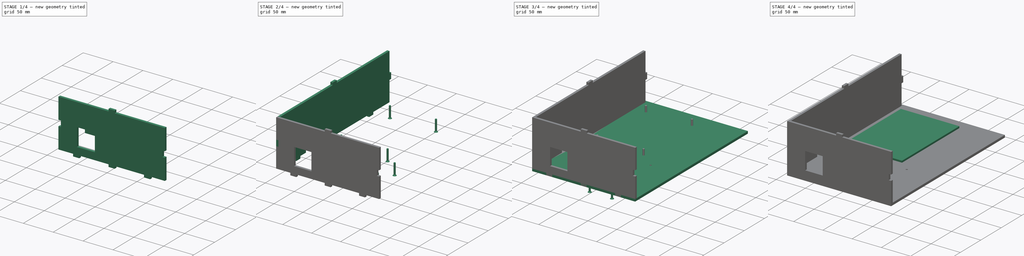
[diagram: build sequence overview — one tinted view per stage of 4, left to right]
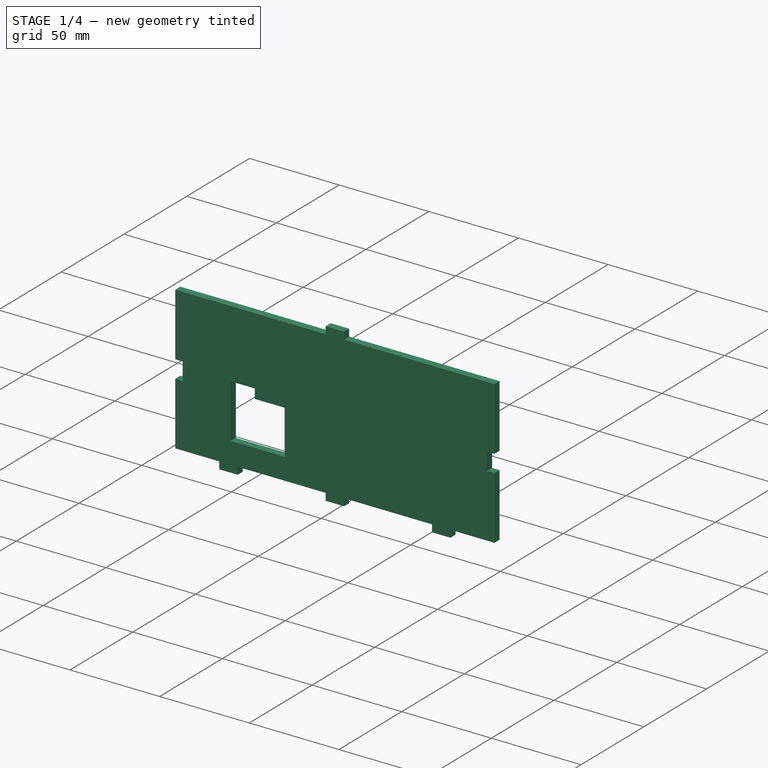
[diagram: stage 1 of 4 — iso view after this stage's code; geometry added in this stage tinted green]
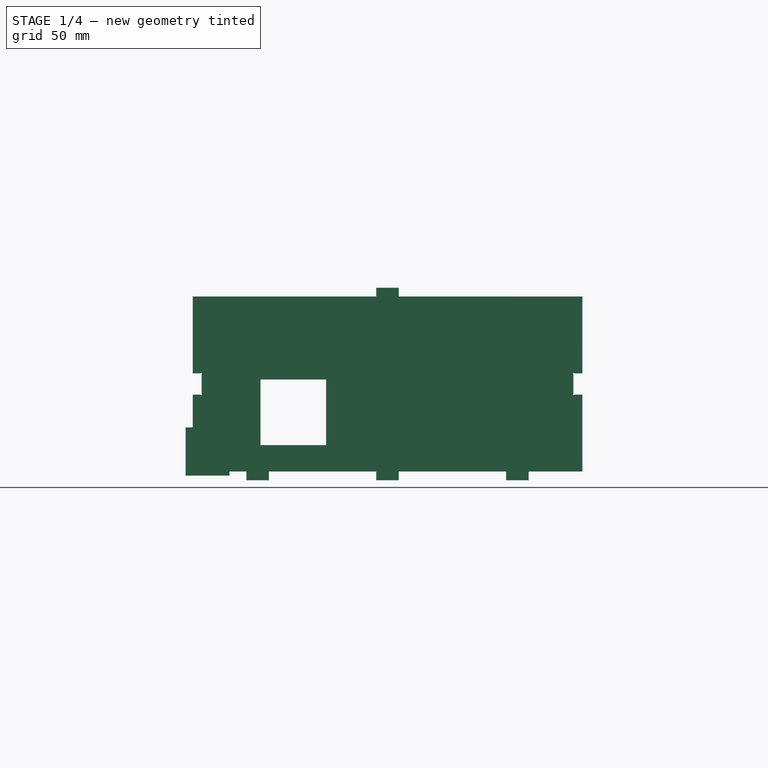
[diagram: stage 1 of 4 — front view after this stage's code; geometry added in this stage tinted green]
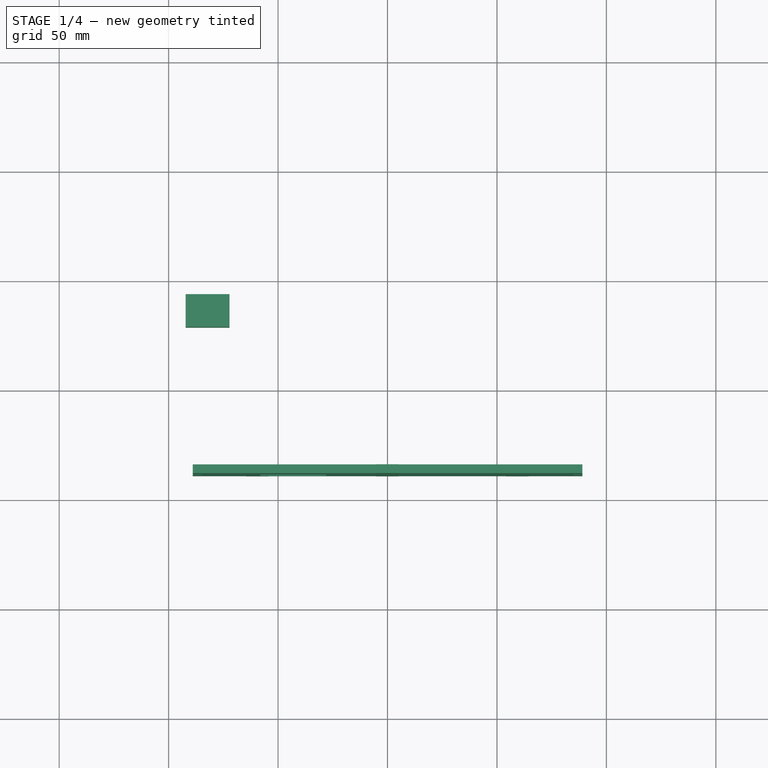
[diagram: stage 1 of 4 — top view after this stage's code; geometry added in this stage tinted green]
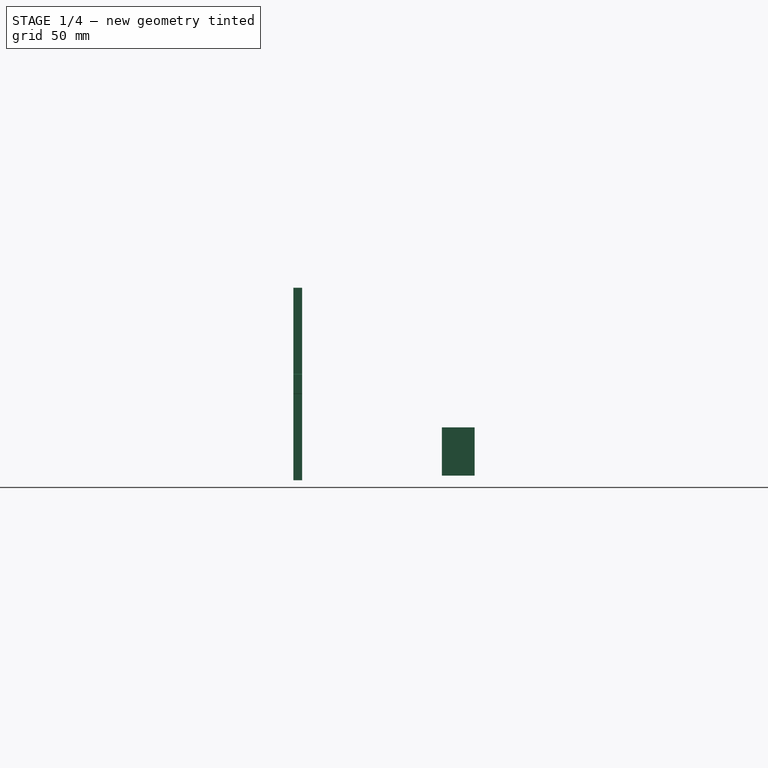
[diagram: stage 1 of 4 — right view after this stage's code; geometry added in this stage tinted green]
FCSTD DOCUMENT  (FreeCAD 0.20R29410 (Git))
Label: enclosure
License: All rights reserved
LicenseURL: http://en.wikipedia.org/wiki/All_rights_reserved
objects: Part::Feature×45, App::Link×17, App::Part×12, Sketcher::SketchObject×7, Part::Cut×6, Part::MultiFuse×4, PartDesign::CoordinateSystem×3, Part::Box×3, Part::FeaturePython×2, App::DocumentObjectGroup×1
note: 70 computed .brp shape members not serialized (recipe doc carries the construction recipe); baked Part::Feature solids carry a one-line shape summary decoded from their .brp

FEATURE [Part::FeaturePython] MultiJoin  # WARN: FeaturePython — macro-defined, semantics opaque (R4)
FEATURE [App::DocumentObjectGroup] MultiJoin001_origin_parts
  Group = -> [Cut003,face_panel,behind_panel,left_panel,right_panel,top_panel]
FEATURE [Part::Feature] bottom_panel001_tab
  shape: bbox 178 x 278 x 4 mm, 122 faces (baked)
FEATURE [Part::Feature] face_panel_tab
  shape: bbox 178 x 4 x 88 mm, 56 faces (baked)
FEATURE [Part::Feature] behind_panel_tab
  shape: bbox 178 x 4 x 88 mm, 44 faces (baked)
FEATURE [Part::Feature] left_panel_tab
  shape: bbox 4 x 278 x 88 mm, 42 faces (baked)
FEATURE [Part::Feature] right_panel_tab
  shape: bbox 4 x 278 x 88 mm, 42 faces (baked)
FEATURE [Part::Feature] top_panel_tab
  shape: bbox 178 x 278 x 4 mm, 34 faces (baked)
FEATURE [Part::FeaturePython] MultiJoin001  # WARN: FeaturePython — macro-defined, semantics opaque (R4)
  fromParts = -> [MultiJoin001_origin_parts,Cut003,face_panel,behind_panel,left_panel,right_panel,top_panel]
  generatedParts = -> [bottom_panel001_tab,face_panel_tab,behind_panel_tab,left_panel_tab,right_panel_tab,top_panel_tab]
FEATURE [Part::Box] Box001  label="power_cable_hole"
  AttacherType = Attacher::AttachEngine3D
  Height = 22
  Length = 20
  Placement = pos=(-92.22,-71.14,-41.84) rot=(0,0,1;0rad)
  Width = 15
FEATURE [Part::Box] Box002  label="Cube001"
  AttacherType = Attacher::AttachEngine3D
  Height = 30
  Length = 30
  Placement = pos=(-58.0488,-140.092,-27.9398) rot=(0,0,1;0rad)
  Width = 20
FEATURE [Part::Cut] Cut005
  Base = -> behind_panel_tab
  Tool = -> Box002
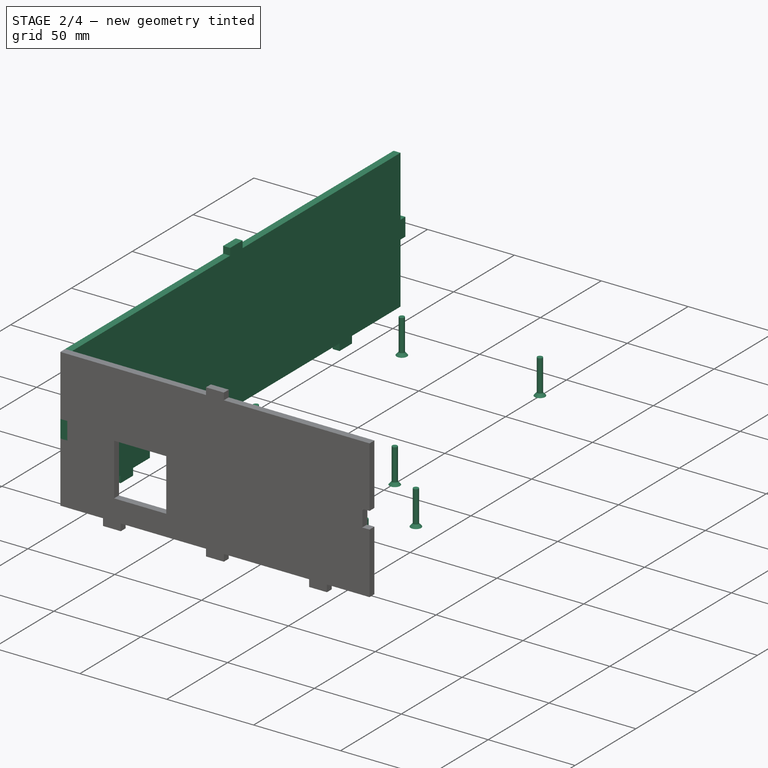
[diagram: stage 2 of 4 — iso view after this stage's code; geometry added in this stage tinted green]
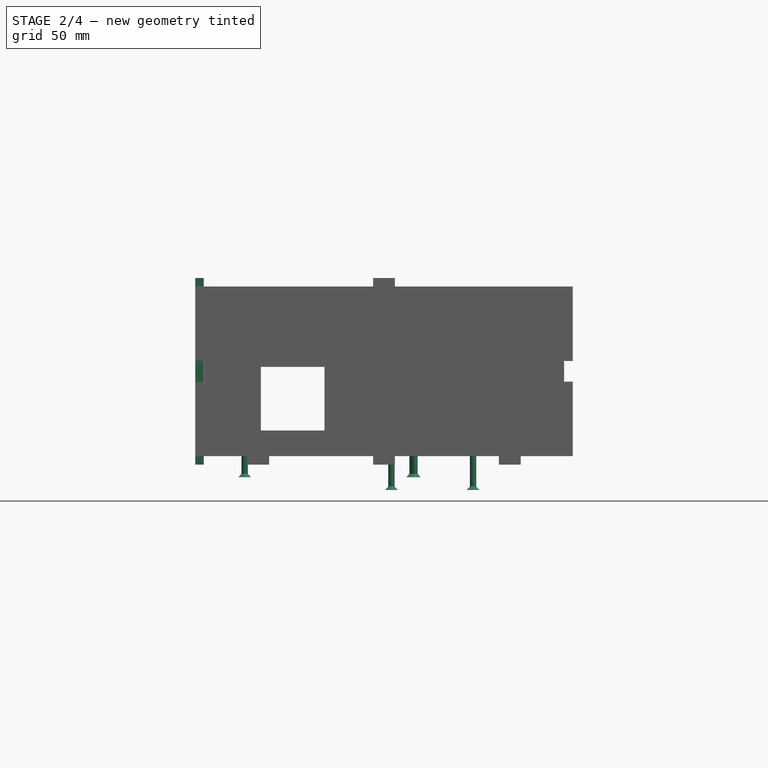
[diagram: stage 2 of 4 — front view after this stage's code; geometry added in this stage tinted green]
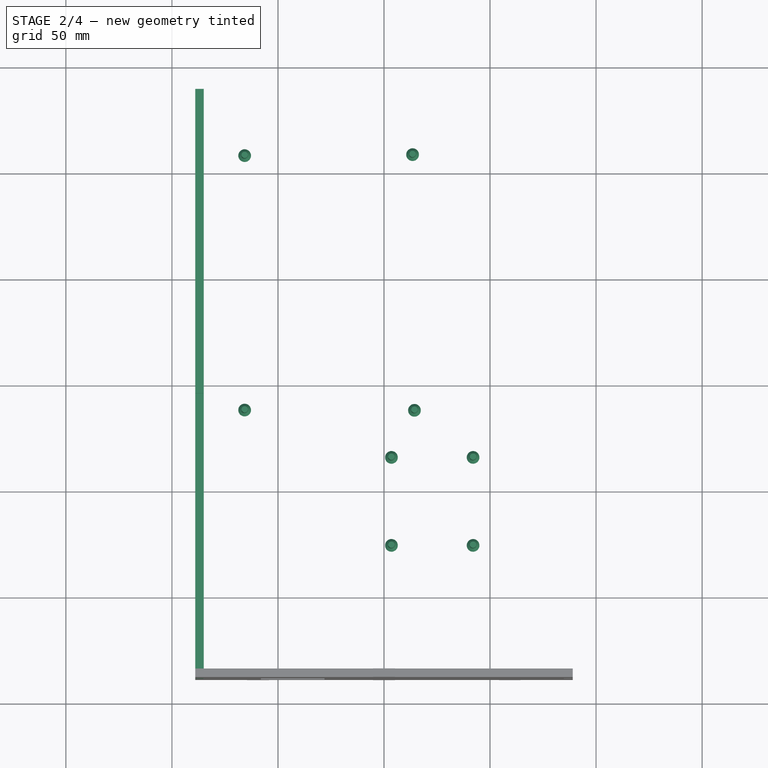
[diagram: stage 2 of 4 — top view after this stage's code; geometry added in this stage tinted green]
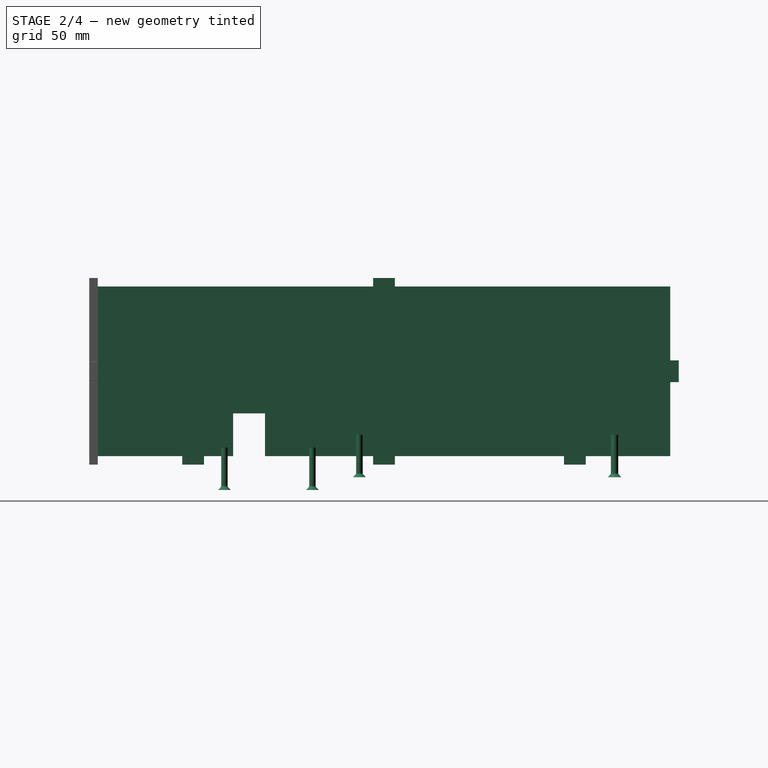
[diagram: stage 2 of 4 — right view after this stage's code; geometry added in this stage tinted green]
FEATURE [Part::Feature] BOLTS_part004  label="Hex socket countersunk head screw M3 20.004"
  Placement = pos=(3.5,-33.7418,-18) rot=(0,0,1;0rad)
  shape: bbox 6 x 6 x 20 mm, 12 faces (baked)
FEATURE [Part::Feature] BOLTS_part005  label="Hex socket countersunk head screw M3 20.005"
  Placement = pos=(42,-33.7418,-18) rot=(0,0,1;0rad)
  shape: bbox 6 x 6 x 20 mm, 12 faces (baked)
FEATURE [Part::Feature] BOLTS_part006  label="Hex socket countersunk head screw M3 20.006"
  Placement = pos=(3.5,-75.2418,-18) rot=(0,0,1;0rad)
  shape: bbox 6 x 6 x 20 mm, 12 faces (baked)
FEATURE [Part::Feature] BOLTS_part007  label="Hex socket countersunk head screw M3 20.007"
  Placement = pos=(42,-75.2418,-18) rot=(0,0,1;0rad)
  shape: bbox 6 x 6 x 20 mm, 12 faces (baked)
FEATURE [Part::Feature] BOLTS_part008  label="Hex socket countersunk head screw M3 20.008"
  Placement = pos=(3.33476,-87.2421,-18) rot=(0,0,1;0rad)
  shape: bbox 6 x 6 x 20 mm, 12 faces (baked)
FEATURE [Part::Feature] BOLTS_part009  label="Hex socket countersunk head screw M3 20.009"
  Placement = pos=(41.8348,-87.2421,-18) rot=(0,0,1;0rad)
  shape: bbox 6 x 6 x 20 mm, 12 faces (baked)
FEATURE [Part::Feature] BOLTS_part010  label="Hex socket countersunk head screw M3 20.010"
  Placement = pos=(3.33476,-128.742,-18) rot=(0,0,1;0rad)
  shape: bbox 6 x 6 x 20 mm, 12 faces (baked)
FEATURE [Part::Feature] BOLTS_part011  label="Hex socket countersunk head screw M3 20.011"
  Placement = pos=(41.8348,-128.742,-18) rot=(0,0,1;0rad)
  shape: bbox 6 x 6 x 20 mm, 12 faces (baked)
FEATURE [Part::MultiFuse] Fusion001  label="solenoid_screws003"
  Placement = pos=(0,0,-38) rot=(0,0,1;0rad)
  Shapes = -> [BOLTS_part004,BOLTS_part005,BOLTS_part006,BOLTS_part007]
FEATURE [Part::Feature] BOLTS_part012  label="Hex socket countersunk head screw M3 20.012"
  Placement = pos=(-65.71,-11.52,-20) rot=(0,0,1;0rad)
  shape: bbox 6 x 6 x 20 mm, 12 faces (baked)
FEATURE [Part::Feature] BOLTS_part013  label="Hex socket countersunk head screw M3 20.013"
  Placement = pos=(14.3605,-11.6478,-20) rot=(0,0,1;0rad)
  shape: bbox 6 x 6 x 20 mm, 12 faces (baked)
FEATURE [Part::Feature] BOLTS_part014  label="Hex socket countersunk head screw M3 20.014"
  Placement = pos=(13.47,108.94,-20) rot=(0,0,1;0rad)
  shape: bbox 6 x 6 x 20 mm, 12 faces (baked)
FEATURE [Part::Feature] BOLTS_part015  label="Hex socket countersunk head screw M3 20.015"
  Placement = pos=(-65.71,108.48,-20) rot=(0,0,1;0rad)
  shape: bbox 6 x 6 x 20 mm, 12 faces (baked)
FEATURE [Part::MultiFuse] Fusion003  label="lick_sensor_screws001"
  Placement = pos=(0,0,-30) rot=(0,0,1;0rad)
  Shapes = -> [BOLTS_part012,BOLTS_part013,BOLTS_part014,BOLTS_part015]
FEATURE [Part::Cut] Cut004
  Base = -> right_panel_tab
  Tool = -> Box001
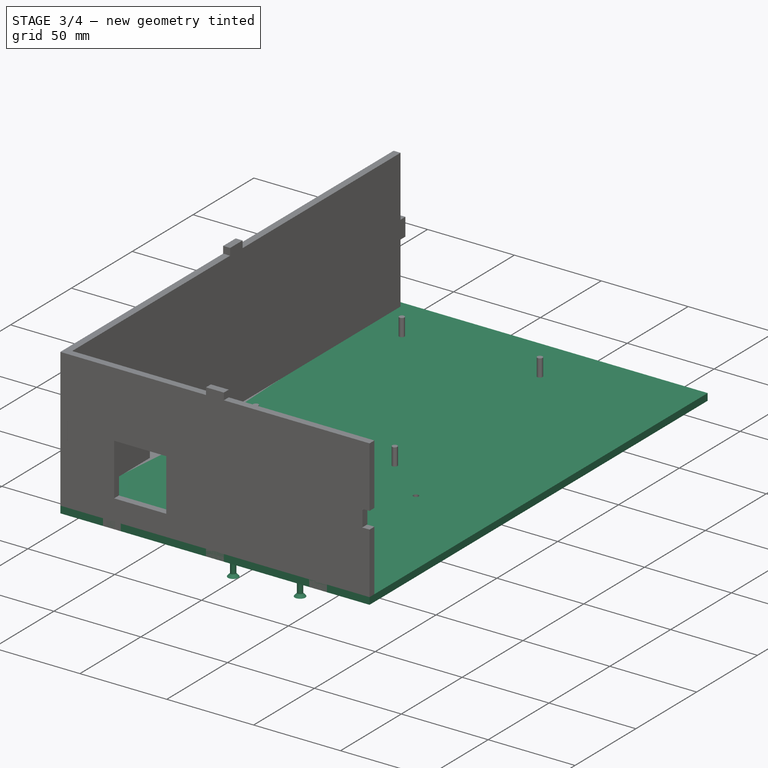
[diagram: stage 3 of 4 — iso view after this stage's code; geometry added in this stage tinted green]
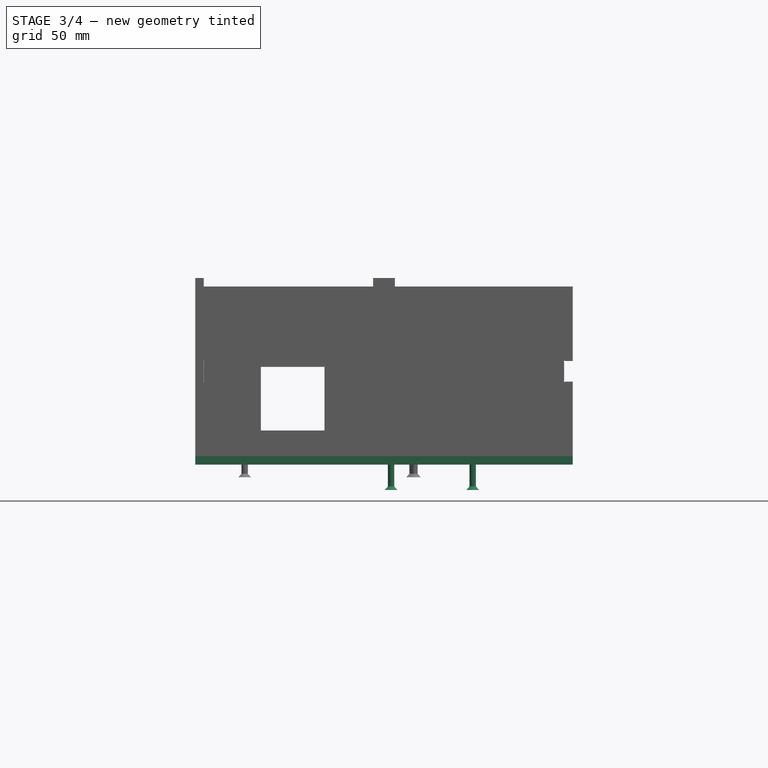
[diagram: stage 3 of 4 — front view after this stage's code; geometry added in this stage tinted green]
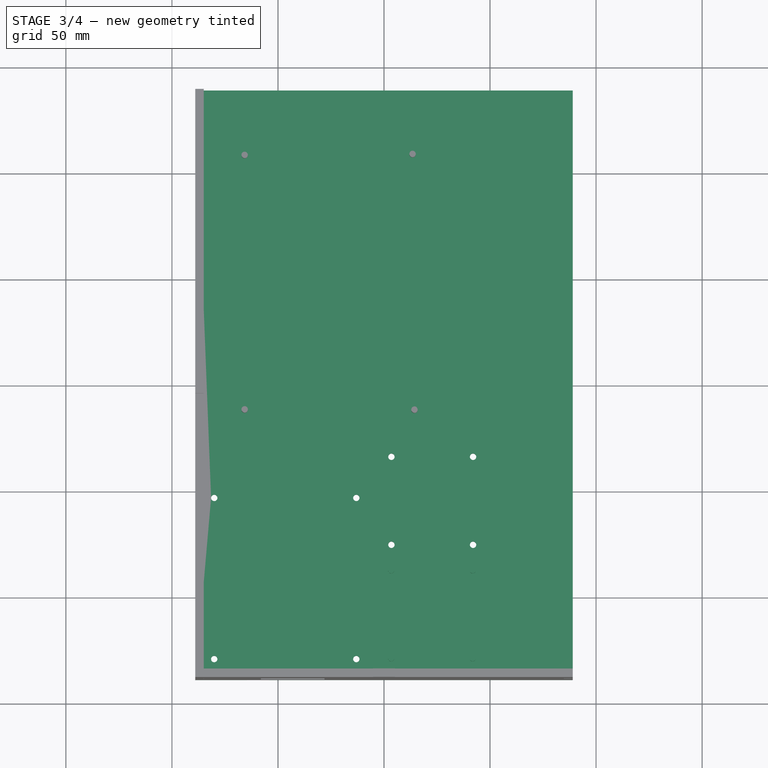
[diagram: stage 3 of 4 — top view after this stage's code; geometry added in this stage tinted green]
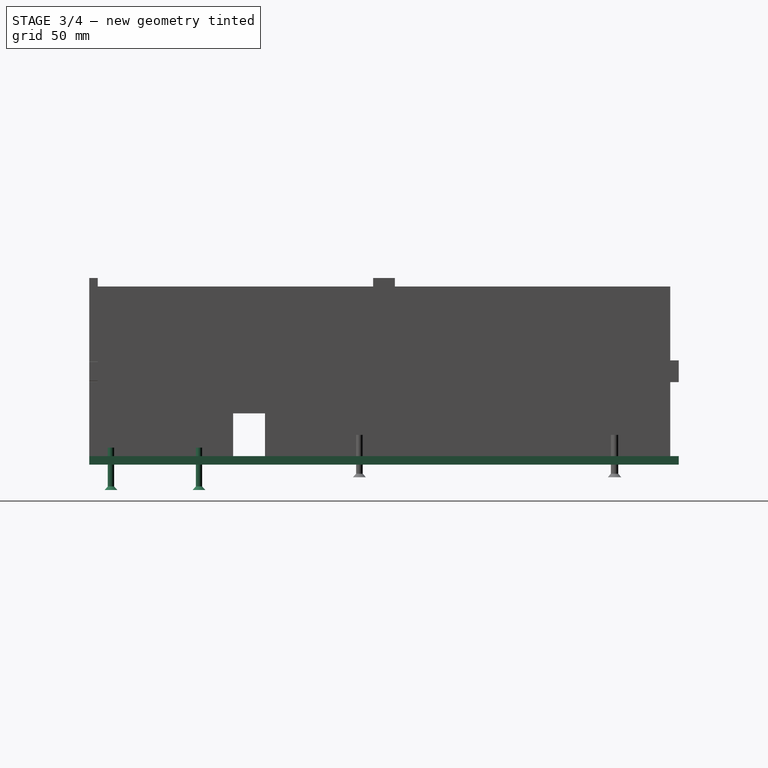
[diagram: stage 3 of 4 — right view after this stage's code; geometry added in this stage tinted green]
FEATURE [Sketcher::SketchObject] Sketch001  label="solenoid_screws1"
  FullyConstrained = true
  Placement = pos=(-0.0107633,-30.2428,1) rot=(0,0,1;0rad)
  sketch-geometry (4):
    g0: Circle CenterX=3.5 CenterY=-3.5 CenterZ=0 NormalX=0 NormalY=0 NormalZ=1 AngleXU=0 Radius=1.6
    g1: Circle CenterX=42 CenterY=-3.5 CenterZ=0 NormalX=0 NormalY=0 NormalZ=1 AngleXU=0 Radius=1.6
    g2: Circle CenterX=3.5 CenterY=-45 CenterZ=0 NormalX=0 NormalY=0 NormalZ=1 AngleXU=0 Radius=1.6
    g3: Circle CenterX=42 CenterY=-45 CenterZ=0 NormalX=0 NormalY=0 NormalZ=1 AngleXU=0 Radius=1.6
  constraints (12):
    c: Radius(g0) = 1.6
    c: DistanceX(g0) = 3.5
    c: DistanceY(g0) = -3.5
    c: Radius(g1) = 1.6
    c: DistanceX(g1) = 42
    c: DistanceY(g1) = -3.5
    c: Radius(g2) = 1.6
    c: DistanceX(g2) = 3.5
    c: DistanceY(g2) = -45
    c: Radius(g3) = 1.6
    c: DistanceX(g3) = 42
    c: DistanceY(g3) = -45
FEATURE [Sketcher::SketchObject] Sketch004  label="main_board_screws001"
  AttachmentOffset = pos=(-3,-32.8,0) rot=(0,0,1;0rad)
  FullyConstrained = true
  MapMode = 5
  Placement = pos=(-2.75946,-31.4841,1) rot=(0,0,1;0rad)
  sketch-geometry (4):
    g0: Circle CenterX=-10.2951 CenterY=-97.6595 CenterZ=0 NormalX=0 NormalY=0 NormalZ=1 AngleXU=0 Radius=1.6
    g1: Circle CenterX=-77.2851 CenterY=-97.6595 CenterZ=0 NormalX=0 NormalY=0 NormalZ=1 AngleXU=0 Radius=1.6
    g2: Circle CenterX=-77.2851 CenterY=-21.6595 CenterZ=0 NormalX=0 NormalY=0 NormalZ=1 AngleXU=0 Radius=1.6
    g3: Circle CenterX=-10.2951 CenterY=-21.6595 CenterZ=0 NormalX=0 NormalY=0 NormalZ=1 AngleXU=0 Radius=1.6
  constraints (12):
    c: Radius(g0) = 1.6
    c: Radius(g1) = 1.6
    c: Radius(g2) = 1.6
    c: Radius(g3) = 1.6
    c: DistanceX(g1,g0) = 66.99
    c: DistanceY(g0,g1) = 0
    c: DistanceY(g0,g3) = 76
    c: DistanceX(g0,g3) = 0
    c: DistanceY(g2,g3) = 0
    c: DistanceX(g2,g3) = 66.99
    c: DistanceX(g1) = -77.2851
    c: DistanceY(g1) = -97.6595
FEATURE [Part::Feature] face_panel
  shape: bbox 178 x 4 x 80 mm, 6 faces (baked)
FEATURE [Part::Feature] behind_panel
  Placement = pos=(0,-274,0) rot=(0,0,1;0rad)
  shape: bbox 178 x 4 x 80 mm, 6 faces (baked)
FEATURE [Part::Feature] left_panel
  shape: bbox 4 x 270 x 80 mm, 6 faces (baked)
FEATURE [Part::Feature] right_panel
  Placement = pos=(-174,0,0) rot=(0,0,1;0rad)
  shape: bbox 4 x 270 x 80 mm, 6 faces (baked)
FEATURE [Part::Feature] bottom_panel
  shape: bbox 178 x 278 x 4 mm, 6 faces (baked)
FEATURE [Sketcher::SketchObject] Sketch003  label="lick_sensor_screws"
  AttachmentOffset = pos=(-4,-85,-42) rot=(0,0,1;0rad)
  FullyConstrained = true
  MapMode = 2
  Placement = pos=(-4,-85,-42) rot=(0,0,1;0rad)
  Support = -> [bottom_panel]
  sketch-geometry (4):
    g0: Circle CenterX=-61.7119 CenterY=73.4769 CenterZ=0 NormalX=0 NormalY=0 NormalZ=1 AngleXU=0 Radius=1.6
    g1: Circle CenterX=18.2881 CenterY=73.4769 CenterZ=0 NormalX=0 NormalY=0 NormalZ=1 AngleXU=0 Radius=1.6
    g2: Circle CenterX=18.2881 CenterY=193.477 CenterZ=0 NormalX=0 NormalY=0 NormalZ=1 AngleXU=0 Radius=1.6
    g3: Circle CenterX=-61.7119 CenterY=193.477 CenterZ=0 NormalX=0 NormalY=0 NormalZ=1 AngleXU=0 Radius=1.6
  constraints (12):
    c: Radius(g0) = 1.6
    c: DistanceX(g0) = -61.7119
    c: DistanceY(g0) = 73.4769
    c: Radius(g1) = 1.6
    c: DistanceX(g0,g1) = 80
    c: DistanceY(g0,g1) = 0
    c: Radius(g2) = 1.6
    c: DistanceX(g2,g1) = 0
    c: DistanceY(g1,g2) = 120
    c: Radius(g3) = 1.6
    c: DistanceY(g3,g2) = 0
    c: DistanceX(g0,g3) = 0
FEATURE [Part::Feature] top_panel
  shape: bbox 178 x 278 x 4 mm, 6 faces (baked)
FEATURE [Part::Feature] BOLTS_part  label="Hex socket countersunk head screw M3 20.0"
  Placement = pos=(-80.0507,-129.131,-17.8) rot=(0,0,1;0rad)
  shape: bbox 6 x 6 x 20 mm, 12 faces (baked)
FEATURE [Part::Feature] BOLTS_part001  label="Hex socket countersunk head screw M3 20.001"
  Placement = pos=(-80.0507,-53.1308,-17.8) rot=(0,0,1;0rad)
  shape: bbox 6 x 6 x 20 mm, 12 faces (baked)
FEATURE [Part::Feature] BOLTS_part002  label="Hex socket countersunk head screw M3 20.002"
  Placement = pos=(-13.0507,-53.1308,-17.8) rot=(0,0,1;0rad)
  shape: bbox 6 x 6 x 20 mm, 12 faces (baked)
FEATURE [Part::Feature] BOLTS_part003  label="Hex socket countersunk head screw M3 20.003"
  Placement = pos=(-13.0507,-129.131,-17.8) rot=(0,0,1;0rad)
  shape: bbox 6 x 6 x 20 mm, 12 faces (baked)
FEATURE [Part::MultiFuse] Fusion  label="main_board_screws"
  Placement = pos=(0,0,-34) rot=(0,0,1;0rad)
  Shapes = -> [BOLTS_part,BOLTS_part001,BOLTS_part002,BOLTS_part003]
FEATURE [Part::Cut] Cut
  Base = -> bottom_panel
  Tool = -> Fusion
FEATURE [Part::MultiFuse] Fusion002  label="solenoid_screws004"
  Placement = pos=(0,0,-38) rot=(0,0,1;0rad)
  Shapes = -> [BOLTS_part008,BOLTS_part009,BOLTS_part010,BOLTS_part011]
FEATURE [Part::Cut] Cut001
  Base = -> Cut
  Tool = -> Fusion001
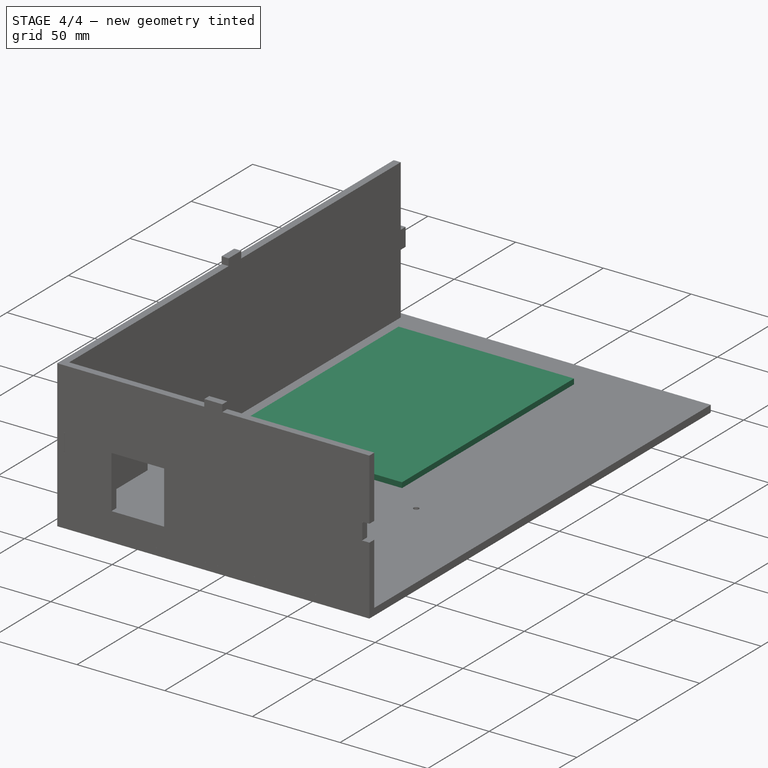
[diagram: stage 4 of 4 — iso view after this stage's code; geometry added in this stage tinted green]
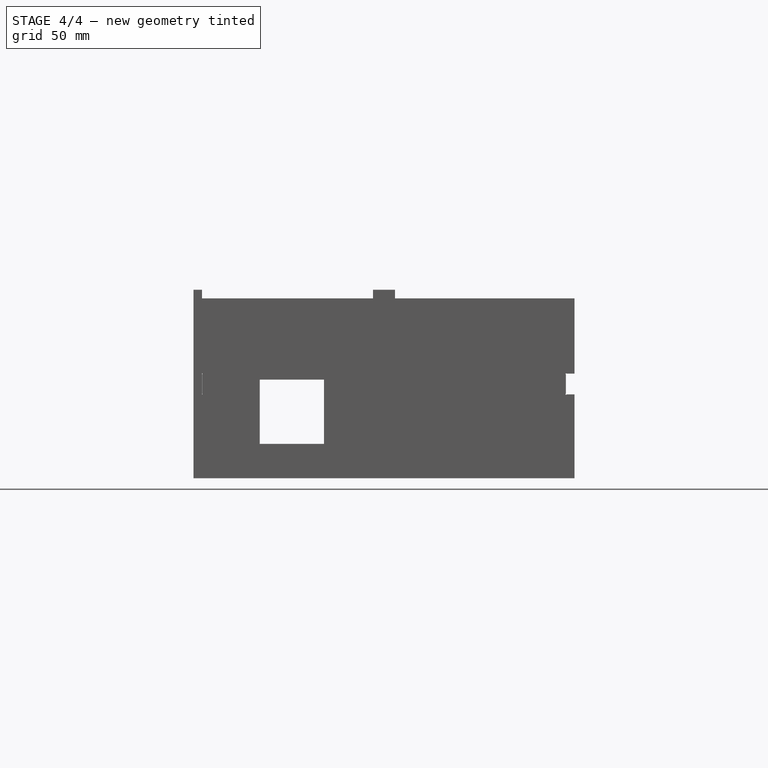
[diagram: stage 4 of 4 — front view after this stage's code; geometry added in this stage tinted green]
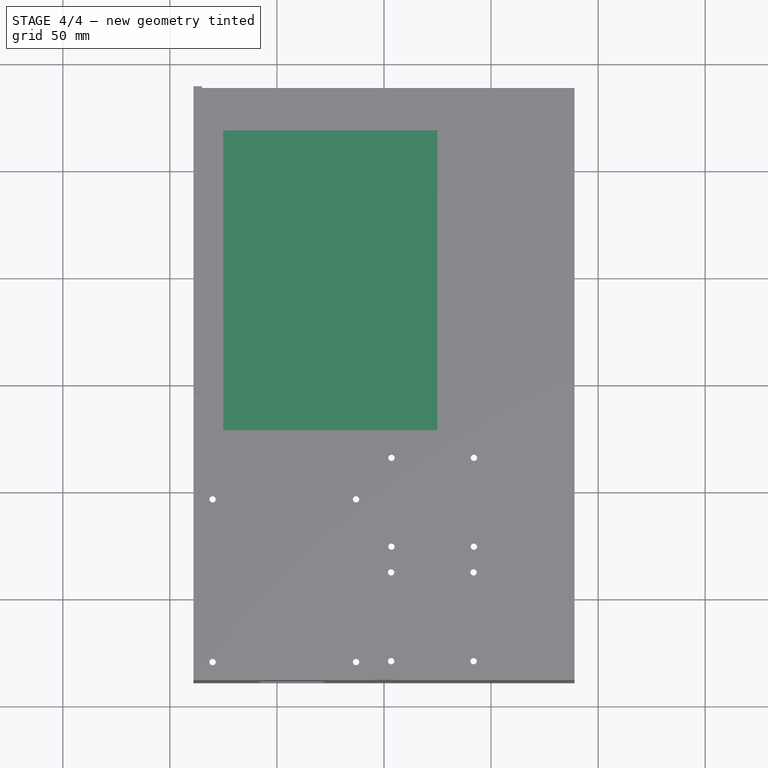
[diagram: stage 4 of 4 — top view after this stage's code; geometry added in this stage tinted green]
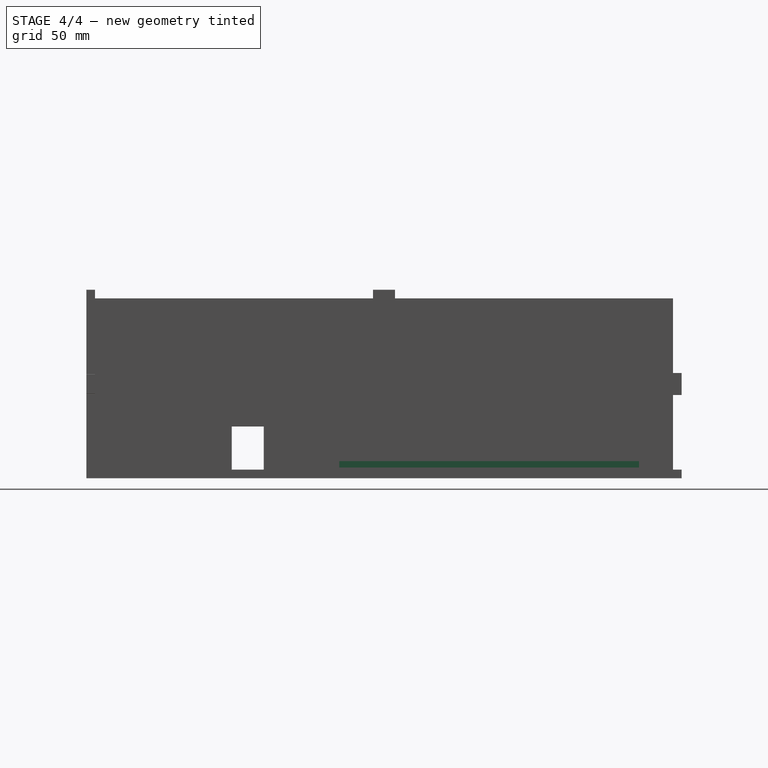
[diagram: stage 4 of 4 — right view after this stage's code; geometry added in this stage tinted green]
FEATURE [PartDesign::CoordinateSystem] Local_CS_e13b
  AttacherType = Attacher::AttachEngine3D
  MapMode = 2
  Support = -> [X_Axis001]
FEATURE [Part::Feature] Pcb_e13b
  shape: bbox 45.5 x 48.5 x 1.6 mm, 40 faces (baked)
FEATURE [Sketcher::SketchObject] PCB_Sketch_e13b
  FullyConstrained = false
  sketch-geometry (4):
    g0: LineSegment StartX=157.5 StartY=-80.5 StartZ=0 EndX=157.5 EndY=-129 EndZ=0
    g1: LineSegment StartX=112 StartY=-129 StartZ=0 EndX=112 EndY=-80.5 EndZ=0
    g2: LineSegment StartX=157.5 StartY=-80.5 StartZ=0 EndX=112 EndY=-80.5 EndZ=0
    g3: LineSegment StartX=157.5 StartY=-129 StartZ=0 EndX=112 EndY=-129 EndZ=0
  constraints (4):
    c: Coincident(g1,g3)
    c: Coincident(g1,g2)
    c: Coincident(g0,g3)
    c: Coincident(g0,g2)
FEATURE [App::Part] Board_Geoms_e13b
  Group = -> [Pcb_e13b,PCB_Sketch_e13b]
  Origin = -> Origin
FEATURE [Part::Feature] Shape  label="J1_JST_B4B_XH_A_000060ce2996"
  Placement = pos=(116.5,-98.873,0) rot=(0,0,1;1.5708rad)
  shape: bbox 5.75 x 12.4 x 10.4 mm, 141 faces (baked)
FEATURE [Part::Feature] Shape001  label="R1_R_Box_L130mm_W40mm_P900mm_000060ce2a81"
  Placement = pos=(130.302,-115.824,0) rot=(0,0,1;1.5708rad)
  shape: bbox 4 x 13 x 11 mm, 10 faces (baked)
FEATURE [Part::Feature] Shape002  label="D1_D_DO-201AD_P15.24mm_Horizontal_0000622bbbd0"
  Placement = pos=(143.637,-111.633,0) rot=(0,0,1;1.5708rad)
  shape: bbox 5.22 x 16.86 x 8.21 mm, 15 faces (baked)
FEATURE [App::Link] D1_D_DO_201AD_P15_24mm_Horizontal_0000622bbbd0_ln_  label="D2_D_DO-201AD_P15.24mm_Horizontal_0000622bbbef"
  LinkPlacement = pos=(136.779,-111.633,0) rot=(0,0,1;1.5708rad)
  LinkedObject = -> Shape002
  Placement = pos=(136.779,-111.633,0) rot=(0,0,1;1.5708rad)
FEATURE [Part::Feature] Shape003  label="J4_JST_B2B_XH_A_0000622bbc6c"
  Placement = pos=(151.113,-115.423,0) rot=(0,0,1;1.5708rad)
  shape: bbox 5.75 x 7.4 x 10.4 mm, 89 faces (baked)
FEATURE [Part::Feature] Shape004  label="Q1_TO-220-3_Vertical_0000622bbc86"
  Placement = pos=(138.494,-83.8835,0) rot=(0,0,1;0rad)
  shape: bbox 10.25 x 4.455 x 28.53 mm, 48 faces (baked)
FEATURE [App::Link] Q1_TO_220_3_Vertical_0000622bbc86_ln_  label="Q2_TO-220-3_Vertical_0000622bbca0"
  LinkPlacement = pos=(124.587,-83.947,0) rot=(0,0,1;0rad)
  LinkedObject = -> Shape004
  Placement = pos=(124.587,-83.947,0) rot=(0,0,1;0rad)
FEATURE [App::Link] R1_R_Box_L130mm_W40mm_P900mm_000060ce2a81_ln_  label="R2_R_Box_L130mm_W40mm_P900mm_0000622bbcb3"
  LinkPlacement = pos=(130.175,-101.02,0) rot=(0,0,1;1.5708rad)
  LinkedObject = -> Shape001
  Placement = pos=(130.175,-101.02,0) rot=(0,0,1;1.5708rad)
FEATURE [App::Link] J4_JST_B2B_XH_A_0000622bbc6c_ln_  label="J2_JST_B2B_XH_A_000062744829"
  LinkPlacement = pos=(116.522,-108.184,0) rot=(0,0,1;1.5708rad)
  LinkedObject = -> Shape003
  Placement = pos=(116.522,-108.184,0) rot=(0,0,1;1.5708rad)
FEATURE [App::Link] J4_JST_B2B_XH_A_0000622bbc6c_ln_001  label="J3_JST_B2B_XH_A_000062744851"
  LinkPlacement = pos=(150.859,-96.5,0) rot=(0,0,1;1.5708rad)
  LinkedObject = -> Shape003
  Placement = pos=(150.859,-96.5,0) rot=(0,0,1;1.5708rad)
FEATURE [App::Link] R1_R_Box_L130mm_W40mm_P900mm_000060ce2a81_ln_001  label="R4_R_Box_L130mm_W40mm_P900mm_a9ebd07146ab"
  LinkPlacement = pos=(124.333,-106.824,0) rot=(0,0,-1;1.5708rad)
  LinkedObject = -> Shape001
  Placement = pos=(124.333,-106.824,0) rot=(0,0,-1;1.5708rad)
FEATURE [App::Link] R1_R_Box_L130mm_W40mm_P900mm_000060ce2a81_ln_002  label="R3_R_Box_L130mm_W40mm_P900mm_9d5ed4e60a8b"
  LinkPlacement = pos=(124.206,-92.075,0) rot=(0,0,-1;1.5708rad)
  LinkedObject = -> Shape001
  Placement = pos=(124.206,-92.075,0) rot=(0,0,-1;1.5708rad)
FEATURE [App::Link] J4_JST_B2B_XH_A_0000622bbc6c_ln_002  label="J5_JST_B2B_XH_A_272d5671b5f0"
  LinkPlacement = pos=(116.459,-117.729,0) rot=(0,0,1;1.5708rad)
  LinkedObject = -> Shape003
  Placement = pos=(116.459,-117.729,0) rot=(0,0,1;1.5708rad)
FEATURE [App::Part] Top_e13b
  Group = -> [Shape,Shape001,Shape002,D1_D_DO_201AD_P15_24mm_Horizontal_0000622bbbd0_ln_,Shape003,Shape004,Q1_TO_220_3_Vertical_0000622bbc86_ln_,R1_R_Box_L130mm_W40mm_P900mm_000060ce2a81_ln_,J4_JST_B2B_XH_A_0000622bbc6c_ln_,J4_JST_B2B_XH_A_0000622bbc6c_ln_001,R1_R_Box_L130mm_W40mm_P900mm_000060ce2a81_ln_001,R1_R_Box_L130mm_W40mm_P900mm_000060ce2a81_ln_002,J4_JST_B2B_XH_A_0000622bbc6c_ln_002]
  Origin = -> Origin003
FEATURE [App::Part] Step_Models_e13b
  Group = -> [Top_e13b]
  Origin = -> Origin002
FEATURE [App::Part] Board_e13b  label="solenoid_driver"
  Group = -> [Local_CS_e13b,Board_Geoms_e13b,Step_Models_e13b]
  Origin = -> Origin001
  Placement = pos=(-112.165,-3.24213,2) rot=(0,0,1;0rad)
FEATURE [Sketcher::SketchObject] Sketch  label="solenoid_screws2"
  FullyConstrained = true
  Placement = pos=(-0.166109,-83.7391,41) rot=(0,0,1;0rad)
  sketch-geometry (4):
    g0: Circle CenterX=3.5 CenterY=-3.5 CenterZ=0 NormalX=0 NormalY=0 NormalZ=1 AngleXU=0 Radius=1.6
    g1: Circle CenterX=42 CenterY=-3.5 CenterZ=0 NormalX=0 NormalY=0 NormalZ=1 AngleXU=0 Radius=1.6
    g2: Circle CenterX=3.5 CenterY=-45 CenterZ=0 NormalX=0 NormalY=0 NormalZ=1 AngleXU=0 Radius=1.6
    g3: Circle CenterX=42 CenterY=-45 CenterZ=0 NormalX=0 NormalY=0 NormalZ=1 AngleXU=0 Radius=1.6
  constraints (12):
    c: Radius(g0) = 1.6
    c: DistanceX(g0) = 3.5
    c: DistanceY(g0) = -3.5
    c: Radius(g1) = 1.6
    c: DistanceX(g1) = 42
    c: DistanceY(g1) = -3.5
    c: Radius(g2) = 1.6
    c: DistanceX(g2) = 3.5
    c: DistanceY(g2) = -45
    c: Radius(g3) = 1.6
    c: DistanceX(g3) = 42
    c: DistanceY(g3) = -45
FEATURE [App::Link] R1_R_Box_L130mm_W40mm_P900mm_000060ce2a81_ln_003  label="R4_R_Box_L130mm_W40mm_P900mm_a9ebd07146ab001"
  LinkPlacement = pos=(124.333,-106.824,0) rot=(0,0,-1;1.5708rad)
  LinkedObject = -> Shape005
  Placement = pos=(124.333,-106.824,0) rot=(0,0,-1;1.5708rad)
FEATURE [App::Link] R1_R_Box_L130mm_W40mm_P900mm_000060ce2a81_ln_004  label="R2_R_Box_L130mm_W40mm_P900mm_0000622bbcb004"
  LinkPlacement = pos=(130.175,-101.02,0) rot=(0,0,1;1.5708rad)
  LinkedObject = -> Shape005
  Placement = pos=(130.175,-101.02,0) rot=(0,0,1;1.5708rad)
FEATURE [App::Link] J4_JST_B2B_XH_A_0000622bbc6c_ln_003  label="J3_JST_B2B_XH_A_000062744852"
  LinkPlacement = pos=(150.859,-96.5,0) rot=(0,0,1;1.5708rad)
  LinkedObject = -> Shape009
  Placement = pos=(150.859,-96.5,0) rot=(0,0,1;1.5708rad)
FEATURE [App::Link] Q1_TO_220_3_Vertical_0000622bbc86_ln_001  label="Q2_TO-220-3_Vertical_0000622bbca001"
  LinkPlacement = pos=(124.587,-83.947,0) rot=(0,0,1;0rad)
  LinkedObject = -> Shape008
  Placement = pos=(124.587,-83.947,0) rot=(0,0,1;0rad)
FEATURE [App::Link] D1_D_DO_201AD_P15_24mm_Horizontal_0000622bbbd0_ln_001  label="D2_D_DO-201AD_P15.24mm_Horizontal_0000622bbbef001"
  LinkPlacement = pos=(136.779,-111.633,0) rot=(0,0,1;1.5708rad)
  LinkedObject = -> Shape007
  Placement = pos=(136.779,-111.633,0) rot=(0,0,1;1.5708rad)
FEATURE [App::Link] J4_JST_B2B_XH_A_0000622bbc6c_ln_004  label="J2_JST_B2B_XH_A_000062744830"
  LinkPlacement = pos=(116.522,-108.184,0) rot=(0,0,1;1.5708rad)
  LinkedObject = -> Shape009
  Placement = pos=(116.522,-108.184,0) rot=(0,0,1;1.5708rad)
FEATURE [App::Link] J4_JST_B2B_XH_A_0000622bbc6c_ln_005  label="J5_JST_B2B_XH_A_272d5671b5f001"
  LinkPlacement = pos=(116.459,-117.729,0) rot=(0,0,1;1.5708rad)
  LinkedObject = -> Shape009
  Placement = pos=(116.459,-117.729,0) rot=(0,0,1;1.5708rad)
FEATURE [App::Link] R1_R_Box_L130mm_W40mm_P900mm_000060ce2a81_ln_005  label="R3_R_Box_L130mm_W40mm_P900mm_9d5ed4e60a8b001"
  LinkPlacement = pos=(124.206,-92.075,0) rot=(0,0,-1;1.5708rad)
  LinkedObject = -> Shape005
  Placement = pos=(124.206,-92.075,0) rot=(0,0,-1;1.5708rad)
FEATURE [Sketcher::SketchObject] PCB_Sketch_e13b001
  FullyConstrained = false
  sketch-geometry (4):
    g0: LineSegment StartX=157.5 StartY=-80.5 StartZ=0 EndX=157.5 EndY=-129 EndZ=0
    g1: LineSegment StartX=112 StartY=-129 StartZ=0 EndX=112 EndY=-80.5 EndZ=0
    g2: LineSegment StartX=157.5 StartY=-80.5 StartZ=0 EndX=112 EndY=-80.5 EndZ=0
    g3: LineSegment StartX=157.5 StartY=-129 StartZ=0 EndX=112 EndY=-129 EndZ=0
  constraints (4):
    c: Coincident(g1,g3)
    c: Coincident(g1,g2)
    c: Coincident(g0,g3)
    c: Coincident(g0,g2)
FEATURE [PartDesign::CoordinateSystem] Local_CS_e13b001
  AttacherType = Attacher::AttachEngine3D
  MapMode = 2
  Support = -> [X_Axis006]
FEATURE [Part::Feature] Pcb_e13b001
  shape: bbox 45.5 x 48.5 x 1.6 mm, 40 faces (baked)
FEATURE [App::Part] Board_Geoms_e13b001  label="Board_Geoms_e13b002"
  Group = -> [Pcb_e13b001,PCB_Sketch_e13b001]
  Origin = -> Origin004
FEATURE [Part::Feature] Shape005  label="R1_R_Box_L130mm_W40mm_P900mm_000060ce2a082"
  Placement = pos=(130.302,-115.824,0) rot=(0,0,1;1.5708rad)
  shape: bbox 4 x 13 x 11 mm, 10 faces (baked)
FEATURE [Part::Feature] Shape006  label="J1_JST_B4B_XH_A_000060ce2997"
  Placement = pos=(116.5,-98.873,0) rot=(0,0,1;1.5708rad)
  shape: bbox 5.75 x 12.4 x 10.4 mm, 141 faces (baked)
FEATURE [Part::Feature] Shape007  label="D1_D_DO-201AD_P15.24mm_Horizontal_0000622bbbd001"
  Placement = pos=(143.637,-111.633,0) rot=(0,0,1;1.5708rad)
  shape: bbox 5.22 x 16.86 x 8.21 mm, 15 faces (baked)
FEATURE [Part::Feature] Shape008  label="Q1_TO-220-3_Vertical_0000622bbc087"
  Placement = pos=(138.494,-83.8835,0) rot=(0,0,1;0rad)
  shape: bbox 10.25 x 4.455 x 28.53 mm, 48 faces (baked)
FEATURE [Part::Feature] Shape009  label="J4_JST_B2B_XH_A_0000622bbc6c001"
  Placement = pos=(151.113,-115.423,0) rot=(0,0,1;1.5708rad)
  shape: bbox 5.75 x 7.4 x 10.4 mm, 89 faces (baked)
FEATURE [App::Part] Top_e13b001  label="Top_e13b002"
  Group = -> [Shape006,Shape005,Shape007,D1_D_DO_201AD_P15_24mm_Horizontal_0000622bbbd0_ln_001,Shape009,Shape008,Q1_TO_220_3_Vertical_0000622bbc86_ln_001,R1_R_Box_L130mm_W40mm_P900mm_000060ce2a81_ln_004,J4_JST_B2B_XH_A_0000622bbc6c_ln_004,J4_JST_B2B_XH_A_0000622bbc6c_ln_003,R1_R_Box_L130mm_W40mm_P900mm_000060ce2a81_ln_003,R1_R_Box_L130mm_W40mm_P900mm_000060ce2a81_ln_005,J4_JST_B2B_XH_A_0000622bbc6c_ln_005]
  Origin = -> Origin005
FEATURE [App::Part] Step_Models_e13b001  label="Step_Models_e13b002"
  Group = -> [Top_e13b001]
  Origin = -> Origin007
FEATURE [App::Part] Board_e13b001  label="solenoid_driver001"
  Group = -> [Local_CS_e13b001,Board_Geoms_e13b001,Step_Models_e13b001]
  Origin = -> Origin006
  Placement = pos=(-112,50.2582,2) rot=(0,0,1;0rad)
FEATURE [PartDesign::CoordinateSystem] Local_CS_b27c001
  AttacherType = Attacher::AttachEngine3D
  MapMode = 2
  Support = -> [X_Axis008]
FEATURE [Part::Feature] Pcb_b27c001
  shape: bbox 76 x 85 x 1.6 mm, 143 faces (baked)
FEATURE [Sketcher::SketchObject] PCB_Sketch_b27c001
  FullyConstrained = false
  sketch-geometry (4):
    g0: LineSegment StartX=135 StartY=-60 StartZ=0 EndX=135 EndY=-145 EndZ=0
    g1: LineSegment StartX=211 StartY=-145 StartZ=0 EndX=211 EndY=-60 EndZ=0
    g2: LineSegment StartX=211 StartY=-145 StartZ=0 EndX=135 EndY=-145 EndZ=0
    g3: LineSegment StartX=135 StartY=-60 StartZ=0 EndX=211 EndY=-60 EndZ=0
  constraints (4):
    c: Coincident(g0,g2)
    c: Coincident(g0,g3)
    c: Coincident(g1,g2)
    c: Coincident(g1,g3)
FEATURE [App::Part] Board_Geoms_b27c001  label="Board_Geoms_b27c002"
  Group = -> [Pcb_b27c001,PCB_Sketch_b27c001]
  Origin = -> Origin009
FEATURE [Part::Feature] Shape010  label="R1_R_Box_L130mm_W40mm_P900mm_61EC0F078"
  Placement = pos=(206.5,-112.5,0) rot=(0,0,-1;1.5708rad)
  shape: bbox 4 x 13 x 11 mm, 10 faces (baked)
FEATURE [Part::Feature] Shape011  label="D2_LED_D3.0mm_61EC0A3C001"
  Placement = pos=(206.5,-105,0) rot=(0,0,-1;1.5708rad)
  shape: bbox 3.8 x 3.4 x 10.8 mm, 16 faces (baked)
FEATURE [Part::Feature] Shape012  label="P16_JST_B2B_XH_A_5FD24A1A001"
  Placement = pos=(191,-141,0) rot=(0,0,1;3.14159rad)
  shape: bbox 7.4 x 5.75 x 10.4 mm, 89 faces (baked)
FEATURE [App::Link] P16_JST_B2B_XH_A_5FD24A1A_ln_001  label="P15_JST_B2B_XH_A_5FD249F002"
  LinkPlacement = pos=(200,-141,0) rot=(0,0,1;3.14159rad)
  LinkedObject = -> Shape012
  Placement = pos=(200,-141,0) rot=(0,0,1;3.14159rad)
FEATURE [Part::Feature] Shape013  label="U1_TO_220_5_Pentawatt_Multiwatt_5_Vertical_StaggeredType1_61E2F561"
  Placement = pos=(200.5,-93.5,0) rot=(0,0,-1;1.5708rad)
  shape: bbox 8.75 x 10.4 x 24.4 mm, 89 faces (baked)
FEATURE [App::Part] Top_b27c001  label="Top_b27c002"
  Group = -> [Shape010,Shape011,Shape012,P16_JST_B2B_XH_A_5FD24A1A_ln_001,Shape013]
  Origin = -> Origin011
FEATURE [App::Part] Step_Models_b27c001  label="Step_Models_b27c003"
  Group = -> [Top_b27c001]
  Origin = -> Origin010
FEATURE [App::Part] Board_b27c001  label="beehive001"
  Group = -> [Local_CS_b27c001,Board_Geoms_b27c001,Step_Models_b27c001]
  Origin = -> Origin008
  Placement = pos=(126.45,-193.63,-32.8) rot=(0,0,1;3.14159rad)
FEATURE [Part::Box] Box  label="Cube"
  AttacherType = Attacher::AttachEngine3D
  Height = 3
  Length = 100
  Placement = pos=(-75.09,-20.89,-39) rot=(0,0,1;0rad)
  Width = 140
FEATURE [Part::Cut] Cut002
  Base = -> Cut001
  Tool = -> Fusion002
FEATURE [Part::Cut] Cut003  label="bottom_panel001"
  Base = -> Cut002
  Tool = -> Fusion003
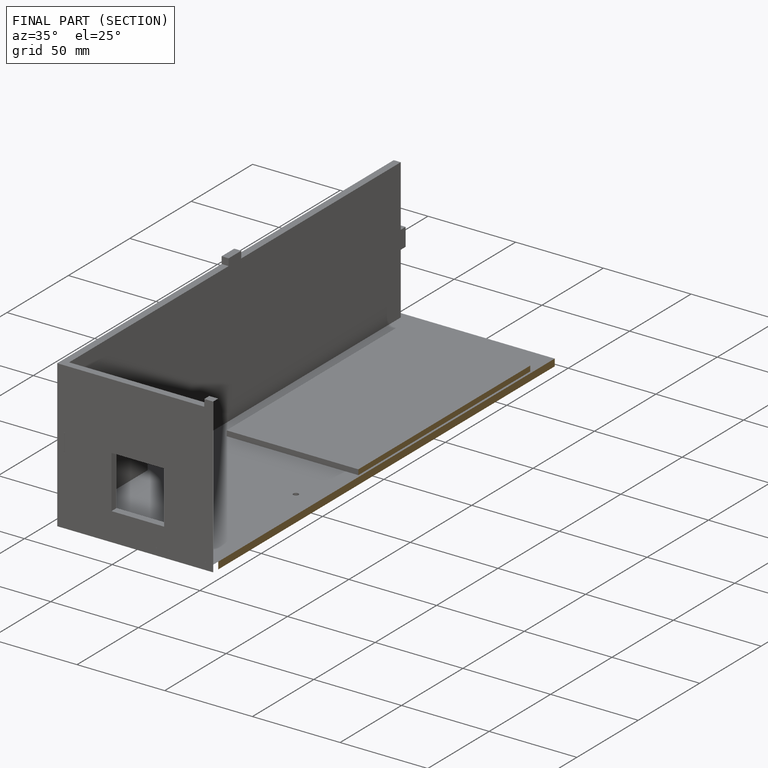
[diagram: finished part — half-section view (interior)]
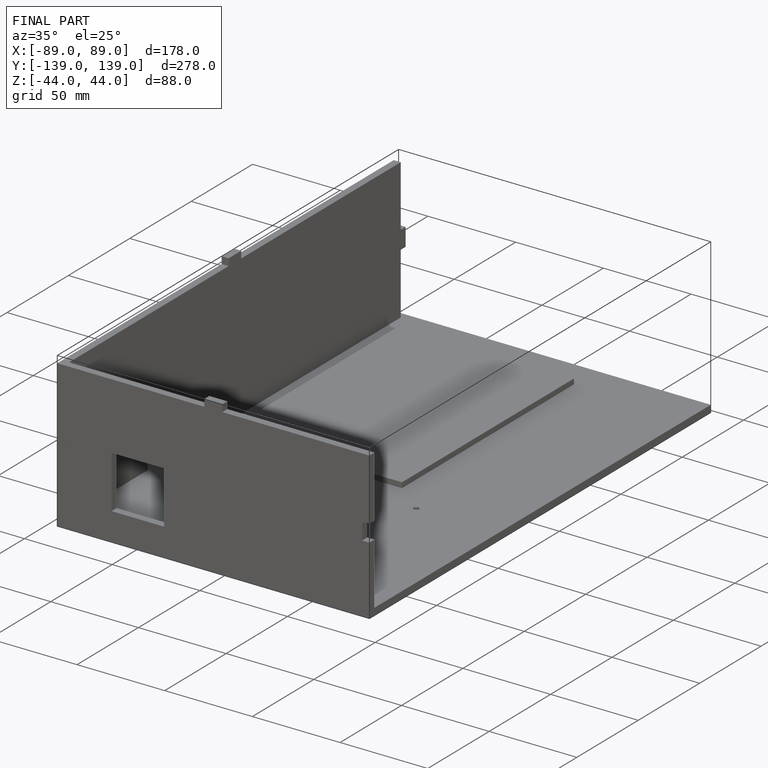
[diagram: finished part — iso view with bounding-box wireframe]
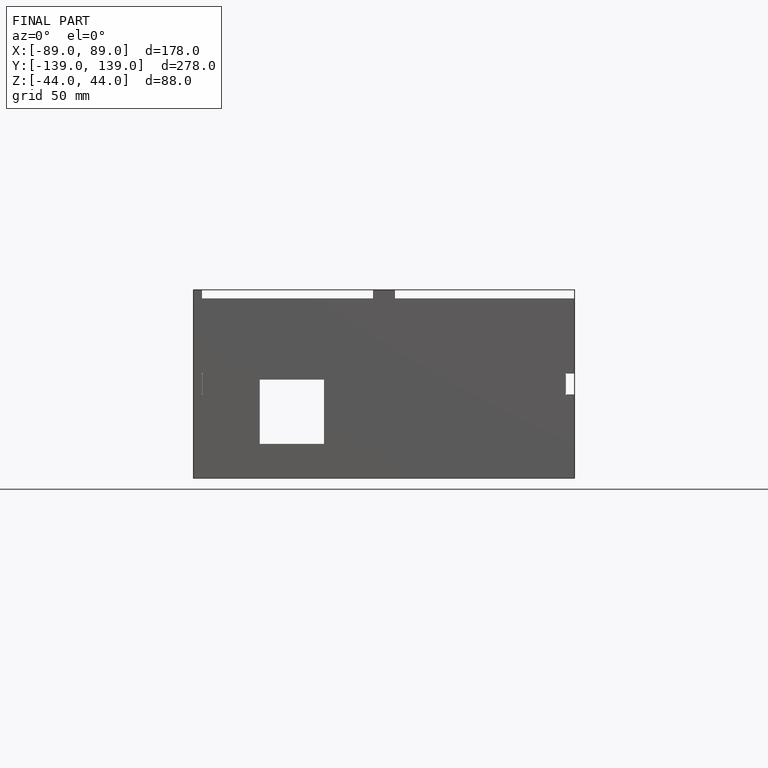
[diagram: finished part — front view with bounding-box wireframe]
